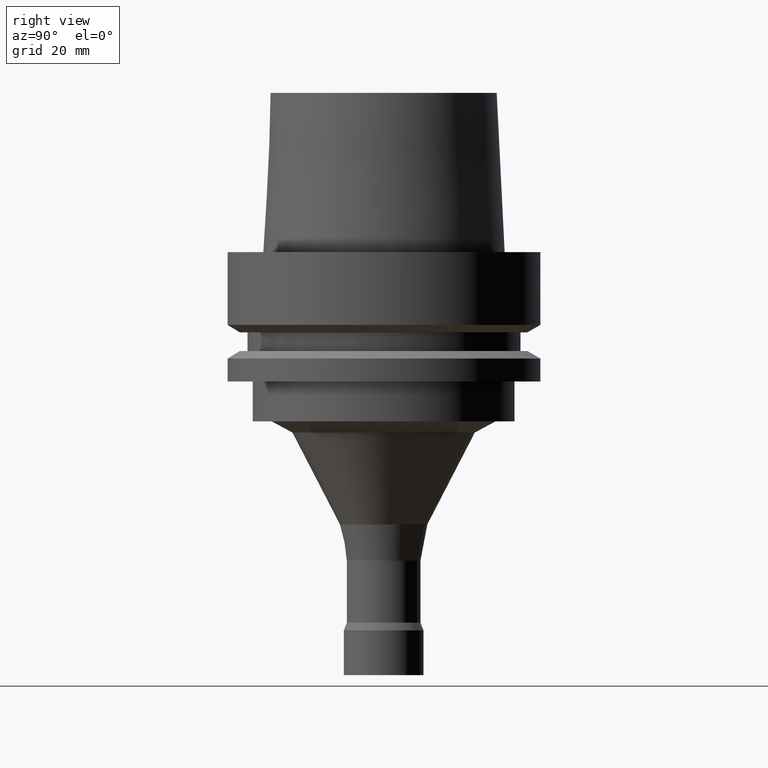
[diagram: clean part render]
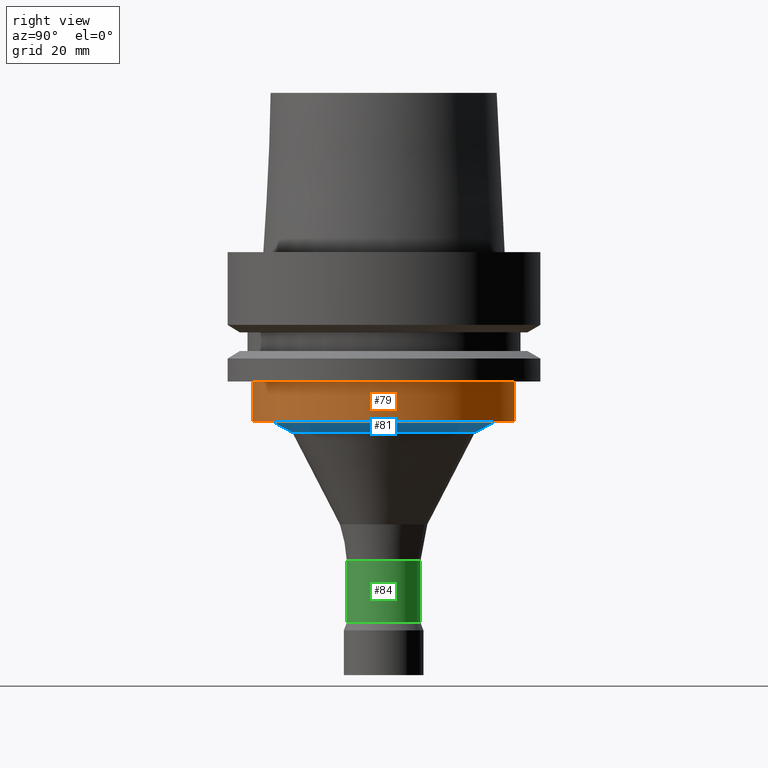
[diagram: same view with three faces highlighted in distinct colors, each labeled with its STEP entity id]
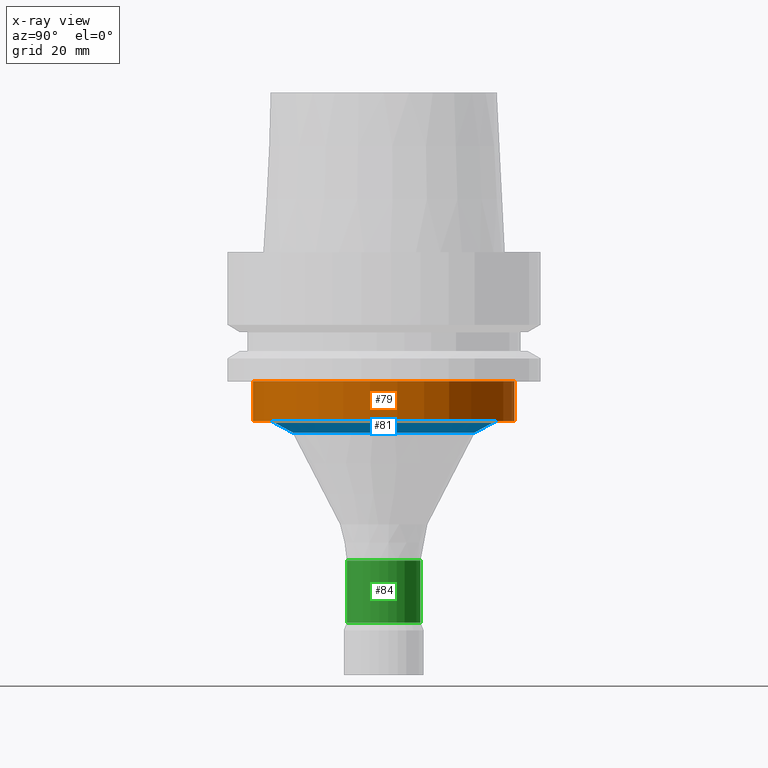
[diagram: x-ray of the same camera — body ghosted, the three highlighted faces saturated]
A machine part, right view with three faces highlighted in distinct colors.
The next image is the same camera in x-ray (body ghosted, the three faces saturated) — at least one of them is partly hidden behind the body in this view.
Their STEP definitions:

[orange] entity #79 — the highlighted cylindrical surface (bore or boss wall) has radius 26.3 mm, axis along (-0, -0, 1).
#79=ADVANCED_FACE('',(#108,#109),#110,.T.);
#108=FACE_BOUND('',#166,.T.);
#109=FACE_BOUND('',#167,.T.);
#110=CYLINDRICAL_SURFACE('',#168,26.3);
#166=EDGE_LOOP('',(#232));
#167=EDGE_LOOP('',(#233));
#168=AXIS2_PLACEMENT_3D('',#234,#235,#236);
#232=ORIENTED_EDGE('',*,*,#315,.F.);
#233=ORIENTED_EDGE('',*,*,#314,.T.);
#234=CARTESIAN_POINT('',(1.83697019872103E-015,3.67394039744206E-015,-30.0));
#235=DIRECTION('',(-6.12323399573677E-017,-1.22464679914735E-016,1.0));
#236=DIRECTION('',(-1.23259516440783E-032,1.0,1.22464679914735E-016));
#314=EDGE_CURVE('',#337,#337,#338,.T.);
#315=EDGE_CURVE('',#339,#339,#340,.T.);
#337=VERTEX_POINT('',#375);
#338=CIRCLE('',#376,26.3);
#339=VERTEX_POINT('',#377);
#340=CIRCLE('',#378,26.3);
#375=CARTESIAN_POINT('',(1.59204083889156E-015,26.3,-26.0));
#376=AXIS2_PLACEMENT_3D('',#417,#418,#419);
#377=CARTESIAN_POINT('',(2.0818995585505E-015,26.3,-34.0));
#378=AXIS2_PLACEMENT_3D('',#420,#421,#422);
#417=CARTESIAN_POINT('',(1.59204083889156E-015,3.18408167778312E-015,-26.0));
#418=DIRECTION('',(6.12323399573677E-017,1.22464679914735E-016,-1.0));
#419=DIRECTION('',(-1.23259516440783E-032,1.0,1.22464679914735E-016));
#420=CARTESIAN_POINT('',(2.0818995585505E-015,4.163799117101E-015,-34.0));
#421=DIRECTION('',(6.12323399573677E-017,1.22464679914735E-016,-1.0));
#422=DIRECTION('',(-1.23259516440783E-032,1.0,1.22464679914735E-016));

[blue] entity #81 — the highlighted conical surface has half-angle 61.656 deg.
#81=ADVANCED_FACE('',(#114,#115),#116,.T.);
#114=FACE_BOUND('',#172,.T.);
#115=FACE_BOUND('',#173,.T.);
#116=CONICAL_SURFACE('',#174,20.4107633160186,1.07609809359383);
#172=EDGE_LOOP('',(#242));
#173=EDGE_LOOP('',(#243));
#174=AXIS2_PLACEMENT_3D('',#244,#245,#246);
#242=ORIENTED_EDGE('',*,*,#317,.F.);
#243=ORIENTED_EDGE('',*,*,#316,.T.);
#244=CARTESIAN_POINT('',(2.15090927359166E-015,4.30181854718332E-015,-35.127014174033));
#245=DIRECTION('',(-6.12323399573677E-017,-1.22464679914735E-016,1.0));
#246=DIRECTION('',(-1.23259516440783E-032,1.0,1.22464679914735E-016));
#316=EDGE_CURVE('',#341,#341,#342,.T.);
#317=EDGE_CURVE('',#343,#343,#344,.T.);
#341=VERTEX_POINT('',#379);
#342=CIRCLE('',#380,22.5);
#343=VERTEX_POINT('',#381);
#344=CIRCLE('',#382,18.3215266320372);
#379=CARTESIAN_POINT('',(2.0818995585505E-015,22.5,-34.0));
#380=AXIS2_PLACEMENT_3D('',#423,#424,#425);
#381=CARTESIAN_POINT('',(2.21991898863282E-015,18.3215266320372,-36.2540283480659));
#382=AXIS2_PLACEMENT_3D('',#426,#427,#428);
#423=CARTESIAN_POINT('',(2.0818995585505E-015,4.163799117101E-015,-34.0));
#424=DIRECTION('',(6.12323399573677E-017,1.22464679914735E-016,-1.0));
#425=DIRECTION('',(-1.23259516440783E-032,1.0,1.22464679914735E-016));
#426=CARTESIAN_POINT('',(2.21991898863282E-015,4.43983797726563E-015,-36.2540283480659));
#427=DIRECTION('',(6.12323399573677E-017,1.22464679914735E-016,-1.0));
#428=DIRECTION('',(-1.23259516440783E-032,1.0,1.22464679914735E-016));

[green] entity #84 — the highlighted cylindrical surface (bore or boss wall) has radius 7.4 mm, axis along (-0, -0, 1).
#84=ADVANCED_FACE('',(#123,#124),#125,.T.);
#123=FACE_BOUND('',#181,.T.);
#124=FACE_BOUND('',#182,.T.);
#125=CYLINDRICAL_SURFACE('',#183,7.4);
#181=EDGE_LOOP('',(#257));
#182=EDGE_LOOP('',(#258));
#183=AXIS2_PLACEMENT_3D('',#259,#260,#261);
#257=ORIENTED_EDGE('',*,*,#320,.F.);
#258=ORIENTED_EDGE('',*,*,#319,.T.);
#259=CARTESIAN_POINT('',(4.17759183975532E-015,8.35518367951065E-015,-68.225252255));
#260=DIRECTION('',(-6.12323399573677E-017,-1.22464679914735E-016,1.0));
#261=DIRECTION('',(-1.23259516440783E-032,1.0,1.22464679914735E-016));
#319=EDGE_CURVE('',#347,#347,#348,.T.);
#320=EDGE_CURVE('',#349,#349,#350,.T.);
#347=VERTEX_POINT('',#385);
#348=CIRCLE('',#386,7.4);
#349=VERTEX_POINT('',#387);
#350=CIRCLE('',#388,7.4);
#385=CARTESIAN_POINT('',(3.7964050773568E-015,7.40000000000001,-62.0));
#386=AXIS2_PLACEMENT_3D('',#432,#433,#434);
#387=CARTESIAN_POINT('',(4.55877860215385E-015,7.40000000000001,-74.45050451));
#388=AXIS2_PLACEMENT_3D('',#435,#436,#437);
#432=CARTESIAN_POINT('',(3.7964050773568E-015,7.59281015471359E-015,-62.0));
#433=DIRECTION('',(6.12323399573677E-017,1.22464679914735E-016,-1.0));
#434=DIRECTION('',(-1.23259516440783E-032,1.0,1.22464679914735E-016));
#435=CARTESIAN_POINT('',(4.55877860215385E-015,9.11755720430771E-015,-74.45050451));
#436=DIRECTION('',(6.12323399573677E-017,1.22464679914735E-016,-1.0));
#437=DIRECTION('',(-1.23259516440783E-032,1.0,1.22464679914735E-016));